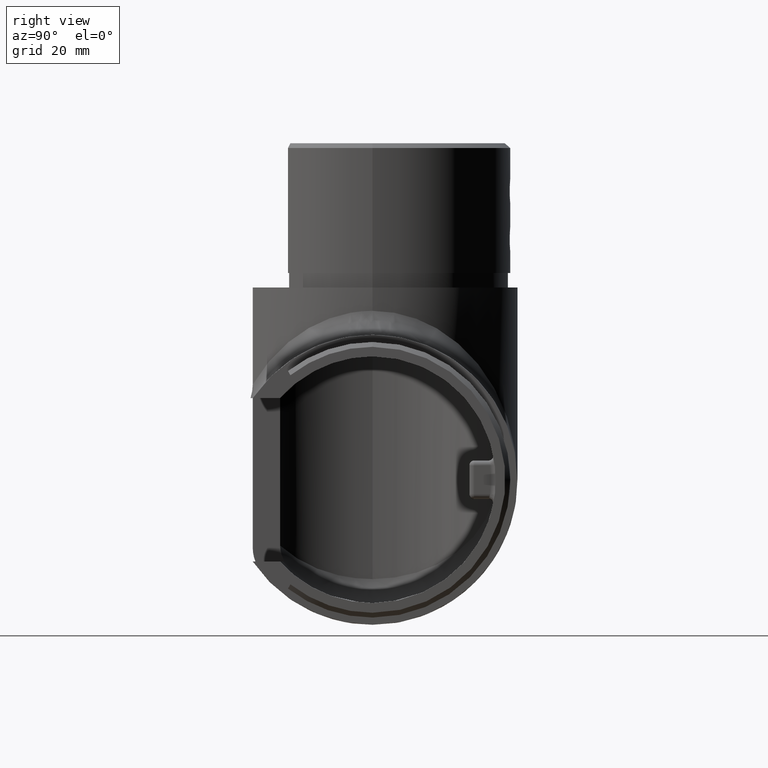
[diagram: clean part render]
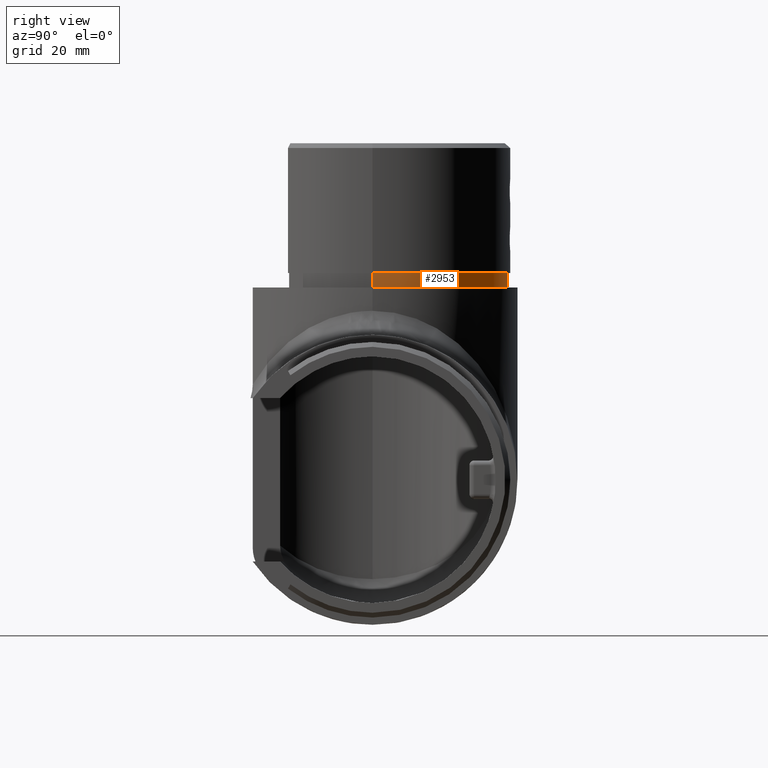
[diagram: same view with one face highlighted and labeled with its STEP entity id]
A machine part, right view. The second image highlights one B-rep face of the part: STEP entity #2953.
In plain terms, the highlighted cylindrical surface (partial cylindrical patch) has radius 28.15 mm, axis along (0, 0, 1).
Its self-contained STEP definition (entity closure, byte-faithful):
#759 = CIRCLE ( 'NONE', #5580, 28.14999999999999858 ) ;
#1277 = CIRCLE ( 'NONE', #5699, 28.14999999999999858 ) ;
#2649 = CARTESIAN_POINT ( 'NONE',  ( 0.000000000000000000, 0.000000000000000000, 0.000000000000000000 ) ) ;
#2826 = DIRECTION ( 'NONE',  ( 0.000000000000000000, 0.000000000000000000, 1.000000000000000000 ) ) ;
#2825 = LINE ( 'NONE', #7060, #14905 ) ;
#2953 = ADVANCED_FACE ( 'NONE', ( #9183 ), #4531, .T. ) ;
#4360 = DIRECTION ( 'NONE',  ( 0.000000000000000000, 0.000000000000000000, 1.000000000000000000 ) ) ;
#4422 = VECTOR ( 'NONE', #18140, 1000.000000000000000 ) ;
#4531 = CYLINDRICAL_SURFACE ( 'NONE', #12646, 28.14999999999999858 ) ;
#4755 = EDGE_CURVE ( 'NONE', #12154, #5680, #1277, .T. ) ;
#5580 = AXIS2_PLACEMENT_3D ( 'NONE', #2649, #5766, #10044 ) ;
#5680 = VERTEX_POINT ( 'NONE', #11425 ) ;
#5699 = AXIS2_PLACEMENT_3D ( 'NONE', #13281, #16436, #19189 ) ;
#5766 = DIRECTION ( 'NONE',  ( 0.000000000000000000, 0.000000000000000000, 1.000000000000000000 ) ) ;
#5840 = EDGE_CURVE ( 'NONE', #14567, #11209, #759, .T. ) ;
#6061 = CARTESIAN_POINT ( 'NONE',  ( 0.000000000000000000, 0.000000000000000000, 0.000000000000000000 ) ) ;
#6115 = CARTESIAN_POINT ( 'NONE',  ( 0.000000000000000000, 28.14999999999999858, 0.000000000000000000 ) ) ;
#7060 = CARTESIAN_POINT ( 'NONE',  ( 28.14999999999999858, 0.000000000000000000, 0.000000000000000000 ) ) ;
#7110 = EDGE_CURVE ( 'NONE', #5680, #11209, #8647, .T. ) ;
#7192 = CARTESIAN_POINT ( 'NONE',  ( 0.000000000000000000, 28.14999999999999858, 0.000000000000000000 ) ) ;
#7666 = ORIENTED_EDGE ( 'NONE', *, *, #5840, .T. ) ;
#8647 = LINE ( 'NONE', #6115, #4422 ) ;
#8868 = DIRECTION ( 'NONE',  ( 1.000000000000000000, 0.000000000000000000, 0.000000000000000000 ) ) ;
#9183 = FACE_OUTER_BOUND ( 'NONE', #11942, .T. ) ;
#10044 = DIRECTION ( 'NONE',  ( 0.000000000000000000, 1.000000000000000000, 0.000000000000000000 ) ) ;
#11209 = VERTEX_POINT ( 'NONE', #7192 ) ;
#11425 = CARTESIAN_POINT ( 'NONE',  ( 0.000000000000000000, 28.14999999999999858, 3.000000000000000000 ) ) ;
#11942 = EDGE_LOOP ( 'NONE', ( #17345, #7666, #17331, #18123 ) ) ;
#12154 = VERTEX_POINT ( 'NONE', #15835 ) ;
#12646 = AXIS2_PLACEMENT_3D ( 'NONE', #6061, #2826, #8868 ) ;
#13281 = CARTESIAN_POINT ( 'NONE',  ( 0.000000000000000000, 0.000000000000000000, 3.000000000000000000 ) ) ;
#14567 = VERTEX_POINT ( 'NONE', #18811 ) ;
#14905 = VECTOR ( 'NONE', #4360, 1000.000000000000000 ) ;
#15389 = EDGE_CURVE ( 'NONE', #14567, #12154, #2825, .T. ) ;
#15835 = CARTESIAN_POINT ( 'NONE',  ( 28.14999999999999858, 0.000000000000000000, 3.000000000000000000 ) ) ;
#16436 = DIRECTION ( 'NONE',  ( 0.000000000000000000, 0.000000000000000000, 1.000000000000000000 ) ) ;
#17331 = ORIENTED_EDGE ( 'NONE', *, *, #7110, .F. ) ;
#17345 = ORIENTED_EDGE ( 'NONE', *, *, #15389, .F. ) ;
#18123 = ORIENTED_EDGE ( 'NONE', *, *, #4755, .F. ) ;
#18140 = DIRECTION ( 'NONE',  ( 0.000000000000000000, -0.000000000000000000, -1.000000000000000000 ) ) ;
#18811 = CARTESIAN_POINT ( 'NONE',  ( 28.14999999999999858, 0.000000000000000000, 0.000000000000000000 ) ) ;
#19189 = DIRECTION ( 'NONE',  ( 0.000000000000000000, 1.000000000000000000, 0.000000000000000000 ) ) ;